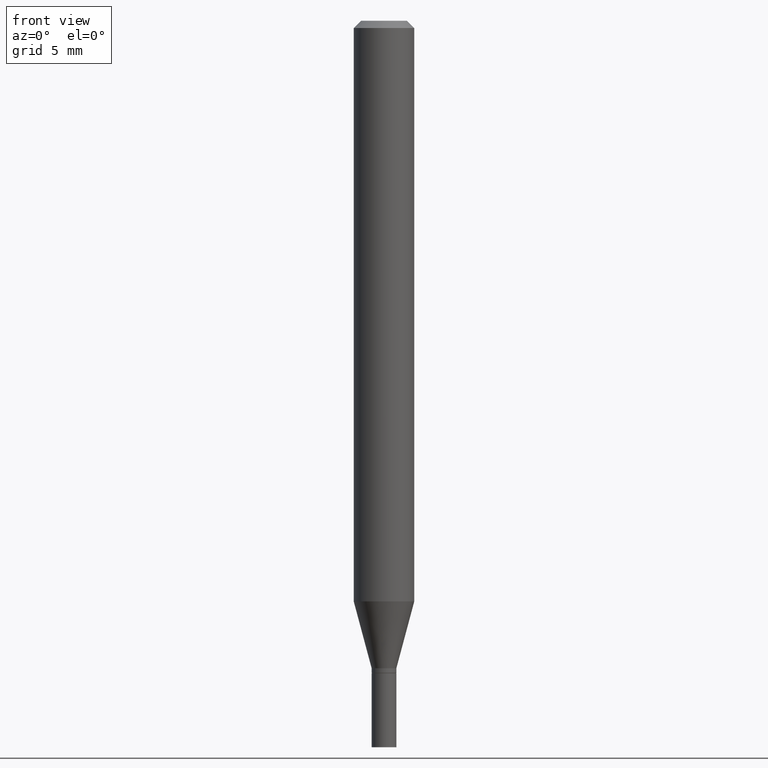
[diagram: clean part render]
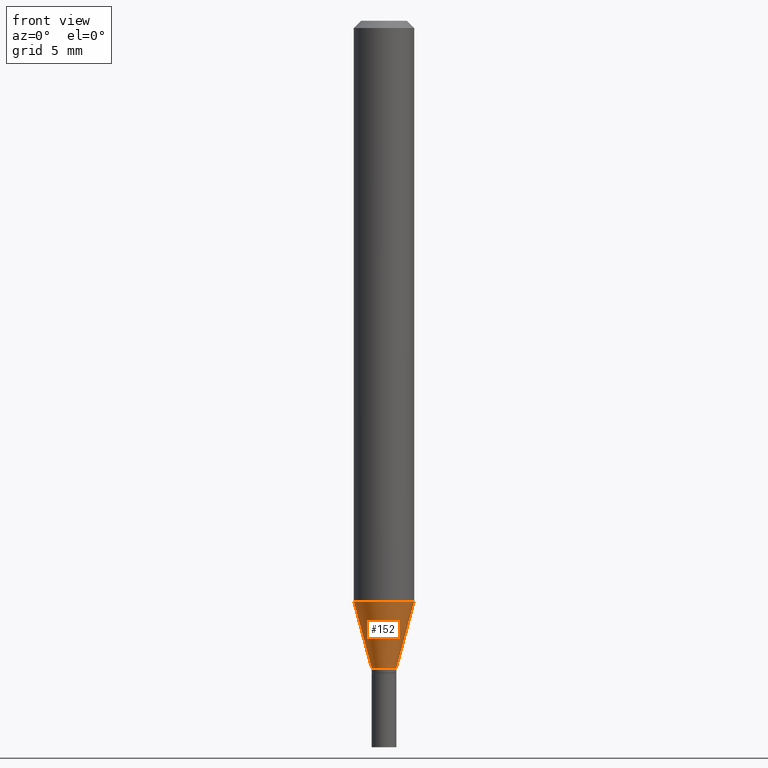
[diagram: same view with one face highlighted and labeled with its STEP entity id]
A machine part, front view. The second image highlights one B-rep face of the part: STEP entity #152.
In plain terms, the highlighted conical surface has half-angle 15 deg.
Its self-contained STEP definition (entity closure, byte-faithful):
#7 = ORIENTED_EDGE ( 'NONE', *, *, #15, .F. ) ;
#14 = ORIENTED_EDGE ( 'NONE', *, *, #322, .F. ) ;
#15 = EDGE_CURVE ( 'NONE', #181, #435, #58, .T. ) ;
#16 = CARTESIAN_POINT ( 'NONE',  ( 3.269591793869527285E-29, -4.668110550033285925E-15, -1.336999999999999966 ) ) ;
#17 = EDGE_CURVE ( 'NONE', #181, #381, #105, .T. ) ;
#44 = DIRECTION ( 'NONE',  ( 1.000000000000000000, -6.982962677686258822E-15, 0.000000000000000000 ) ) ;
#56 = DIRECTION ( 'NONE',  ( 0.2588190451025211836, 1.565188264969622559E-15, 0.9659258262890679791 ) ) ;
#58 = LINE ( 'NONE', #270, #232 ) ;
#105 = CIRCLE ( 'NONE', #223, 0.02549999999999992203 ) ;
#115 = CARTESIAN_POINT ( 'NONE',  ( 0.02549999999999992203, -4.846176098314284811E-15, -1.336999999999999966 ) ) ;
#125 = ORIENTED_EDGE ( 'NONE', *, *, #255, .T. ) ;
#126 = DIRECTION ( 'NONE',  ( -0.2588190451025211836, 5.211531920934547886E-15, 0.9659258262890679791 ) ) ;
#133 = CARTESIAN_POINT ( 'NONE',  ( 0.02549999999999992203, -4.846176098314284811E-15, -1.336999999999999966 ) ) ;
#152 = ADVANCED_FACE ( 'NONE', ( #324 ), #163, .T. ) ;
#156 = DIRECTION ( 'NONE',  ( -2.445468806185136597E-29, 3.491481338843145583E-15, 1.000000000000000000 ) ) ;
#159 = LINE ( 'NONE', #133, #179 ) ;
#163 = CONICAL_SURFACE ( 'NONE', #191, 0.02549999999999992203, 0.2617993877991499074 ) ;
#168 = AXIS2_PLACEMENT_3D ( 'NONE', #420, #156, #460 ) ;
#179 = VECTOR ( 'NONE', #56, 39.37007874015748854 ) ;
#181 = VERTEX_POINT ( 'NONE', #226 ) ;
#191 = AXIS2_PLACEMENT_3D ( 'NONE', #283, #210, #425 ) ;
#194 = DIRECTION ( 'NONE',  ( -2.445468806185136597E-29, 3.491481338843145583E-15, 1.000000000000000000 ) ) ;
#210 = DIRECTION ( 'NONE',  ( -2.445468806185136597E-29, 3.491481338843145583E-15, 1.000000000000000000 ) ) ;
#217 = VERTEX_POINT ( 'NONE', #273 ) ;
#223 = AXIS2_PLACEMENT_3D ( 'NONE', #16, #194, #44 ) ;
#226 = CARTESIAN_POINT ( 'NONE',  ( -0.02549999999999992203, -4.114409609919379013E-15, -1.336999999999999966 ) ) ;
#232 = VECTOR ( 'NONE', #126, 39.37007874015748854 ) ;
#255 = EDGE_CURVE ( 'NONE', #381, #217, #159, .T. ) ;
#258 = CARTESIAN_POINT ( 'NONE',  ( -0.06250000000000000000, -3.741897067424298203E-15, -1.198914120119951576 ) ) ;
#259 = ORIENTED_EDGE ( 'NONE', *, *, #17, .T. ) ;
#270 = CARTESIAN_POINT ( 'NONE',  ( -0.02549999999999992203, -4.486922152414460611E-15, -1.336999999999999966 ) ) ;
#273 = CARTESIAN_POINT ( 'NONE',  ( 0.06250000000000000000, -4.622421444629751700E-15, -1.198914120119951576 ) ) ;
#283 = CARTESIAN_POINT ( 'NONE',  ( 3.269591793869527285E-29, -4.668110550033285925E-15, -1.336999999999999966 ) ) ;
#322 = EDGE_CURVE ( 'NONE', #435, #217, #354, .T. ) ;
#324 = FACE_OUTER_BOUND ( 'NONE', #414, .T. ) ;
#354 = CIRCLE ( 'NONE', #168, 0.06250000000000000000 ) ;
#381 = VERTEX_POINT ( 'NONE', #115 ) ;
#414 = EDGE_LOOP ( 'NONE', ( #7, #259, #125, #14 ) ) ;
#420 = CARTESIAN_POINT ( 'NONE',  ( 2.931907082048241438E-29, -4.185986277274360030E-15, -1.198914120119951576 ) ) ;
#425 = DIRECTION ( 'NONE',  ( 1.000000000000000000, -6.982962677686258822E-15, 0.000000000000000000 ) ) ;
#435 = VERTEX_POINT ( 'NONE', #258 ) ;
#460 = DIRECTION ( 'NONE',  ( 1.000000000000000000, -6.982962677686262766E-15, 0.000000000000000000 ) ) ;